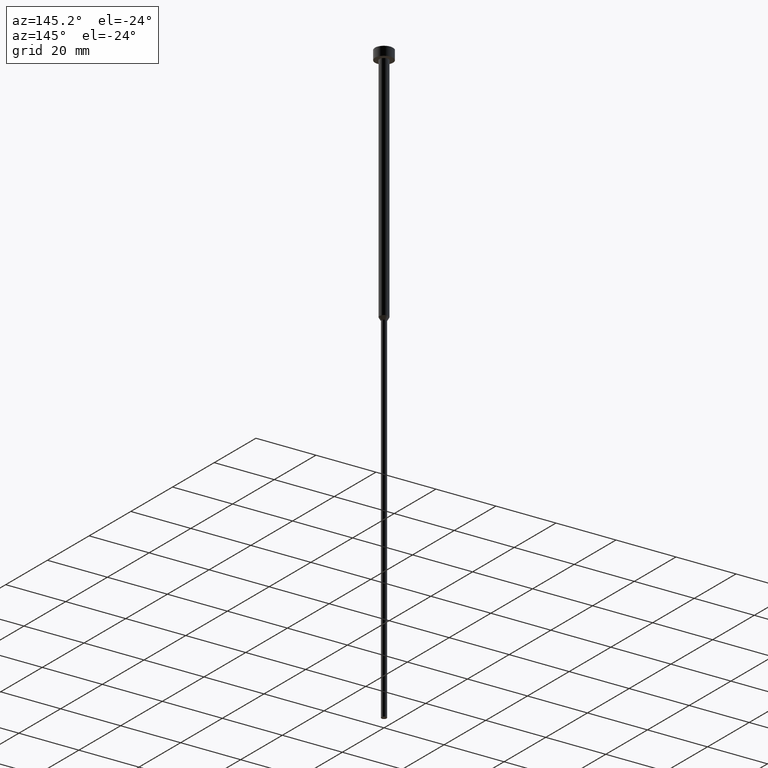
[diagram: clean part render]
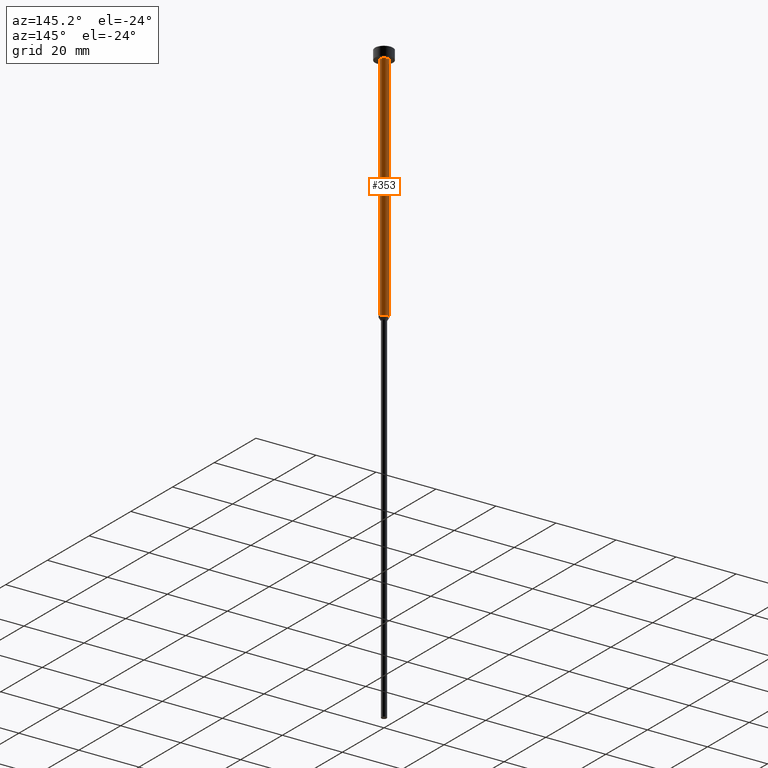
[diagram: same view with one face highlighted and labeled with its STEP entity id]
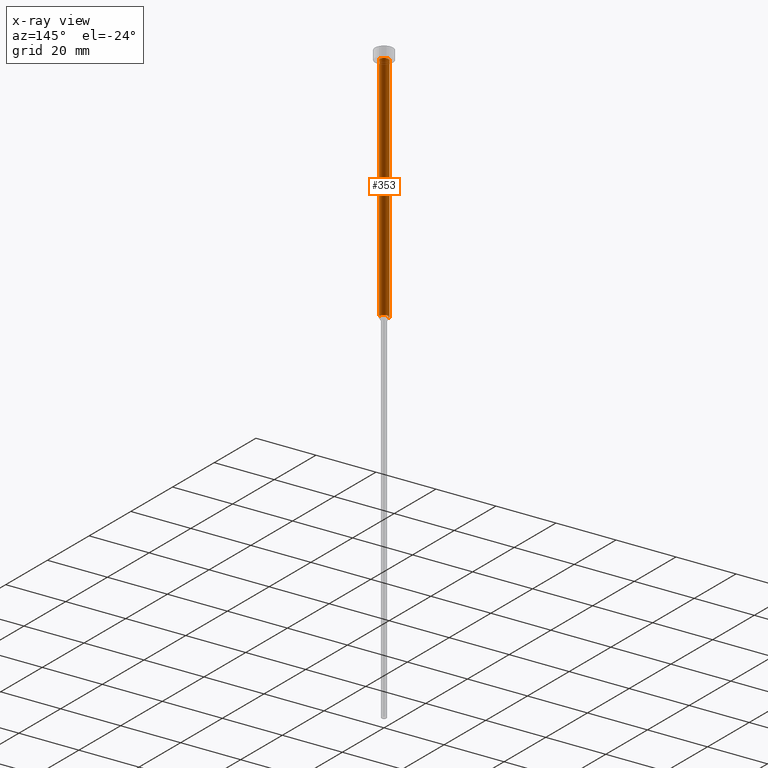
[diagram: x-ray of the same camera — body ghosted, the highlighted face saturated]
A machine part, auxiliary view. The second image highlights one B-rep face of the part: STEP entity #353.
The next image is the same camera in x-ray: the body ghosted, the highlighted face saturated — about 0% of this face is hidden behind the body in this view.
In plain terms, the highlighted cylindrical surface (edge-blend (fillet) strip) has radius 1.5 mm, axis along (-0, -0, 1).
Its self-contained STEP definition (entity closure, byte-faithful):
#1 = AXIS2_PLACEMENT_3D ( 'NONE', #105, #158, #346 ) ;
#4 = VERTEX_POINT ( 'NONE', #193 ) ;
#15 = EDGE_LOOP ( 'NONE', ( #253, #31, #157, #182 ) ) ;
#27 = DIRECTION ( 'NONE',  ( 1.000000000000000000, 0.000000000000000000, 0.000000000000000000 ) ) ;
#28 = VECTOR ( 'NONE', #122, 1000.000000000000000 ) ;
#31 = ORIENTED_EDGE ( 'NONE', *, *, #203, .T. ) ;
#38 = DIRECTION ( 'NONE',  ( -0.000000000000000000, -0.000000000000000000, 1.000000000000000000 ) ) ;
#47 = AXIS2_PLACEMENT_3D ( 'NONE', #303, #219, #271 ) ;
#71 = CARTESIAN_POINT ( 'NONE',  ( -1.500000000000000000, 1.836970198721029934E-16, -3.000000000000000888 ) ) ;
#73 = CIRCLE ( 'NONE', #47, 1.500000000000000000 ) ;
#82 = CARTESIAN_POINT ( 'NONE',  ( 0.000000000000000000, 0.000000000000000000, 0.000000000000000000 ) ) ;
#87 = DIRECTION ( 'NONE',  ( -0.000000000000000000, -0.000000000000000000, 1.000000000000000000 ) ) ;
#105 = CARTESIAN_POINT ( 'NONE',  ( 0.000000000000000000, 0.000000000000000000, -80.00000000000000000 ) ) ;
#121 = CARTESIAN_POINT ( 'NONE',  ( -1.500000000000000000, 1.836970198721029934E-16, 0.000000000000000000 ) ) ;
#122 = DIRECTION ( 'NONE',  ( -0.000000000000000000, -0.000000000000000000, 1.000000000000000000 ) ) ;
#125 = LINE ( 'NONE', #172, #28 ) ;
#127 = EDGE_CURVE ( 'NONE', #146, #175, #125, .T. ) ;
#146 = VERTEX_POINT ( 'NONE', #332 ) ;
#157 = ORIENTED_EDGE ( 'NONE', *, *, #325, .F. ) ;
#158 = DIRECTION ( 'NONE',  ( -0.000000000000000000, -0.000000000000000000, 1.000000000000000000 ) ) ;
#159 = CIRCLE ( 'NONE', #1, 1.500000000000000000 ) ;
#170 = CARTESIAN_POINT ( 'NONE',  ( 1.500000000000000000, 0.000000000000000000, -3.000000000000000888 ) ) ;
#172 = CARTESIAN_POINT ( 'NONE',  ( 1.500000000000000000, 0.000000000000000000, 0.000000000000000000 ) ) ;
#175 = VERTEX_POINT ( 'NONE', #170 ) ;
#182 = ORIENTED_EDGE ( 'NONE', *, *, #127, .F. ) ;
#191 = FACE_OUTER_BOUND ( 'NONE', #15, .T. ) ;
#192 = AXIS2_PLACEMENT_3D ( 'NONE', #82, #87, #27 ) ;
#193 = CARTESIAN_POINT ( 'NONE',  ( -1.500000000000000000, 1.836970198721029934E-16, -80.00000000000000000 ) ) ;
#203 = EDGE_CURVE ( 'NONE', #4, #240, #281, .T. ) ;
#219 = DIRECTION ( 'NONE',  ( -0.000000000000000000, -0.000000000000000000, 1.000000000000000000 ) ) ;
#240 = VERTEX_POINT ( 'NONE', #71 ) ;
#253 = ORIENTED_EDGE ( 'NONE', *, *, #261, .T. ) ;
#255 = VECTOR ( 'NONE', #38, 1000.000000000000000 ) ;
#261 = EDGE_CURVE ( 'NONE', #146, #4, #159, .T. ) ;
#271 = DIRECTION ( 'NONE',  ( 1.000000000000000000, 0.000000000000000000, 0.000000000000000000 ) ) ;
#281 = LINE ( 'NONE', #121, #255 ) ;
#303 = CARTESIAN_POINT ( 'NONE',  ( 0.000000000000000000, 0.000000000000000000, -3.000000000000000888 ) ) ;
#325 = EDGE_CURVE ( 'NONE', #175, #240, #73, .T. ) ;
#328 = CYLINDRICAL_SURFACE ( 'NONE', #192, 1.500000000000000000 ) ;
#332 = CARTESIAN_POINT ( 'NONE',  ( 1.500000000000000000, 0.000000000000000000, -80.00000000000000000 ) ) ;
#346 = DIRECTION ( 'NONE',  ( 1.000000000000000000, 0.000000000000000000, 0.000000000000000000 ) ) ;
#353 = ADVANCED_FACE ( 'NONE', ( #191 ), #328, .T. ) ;